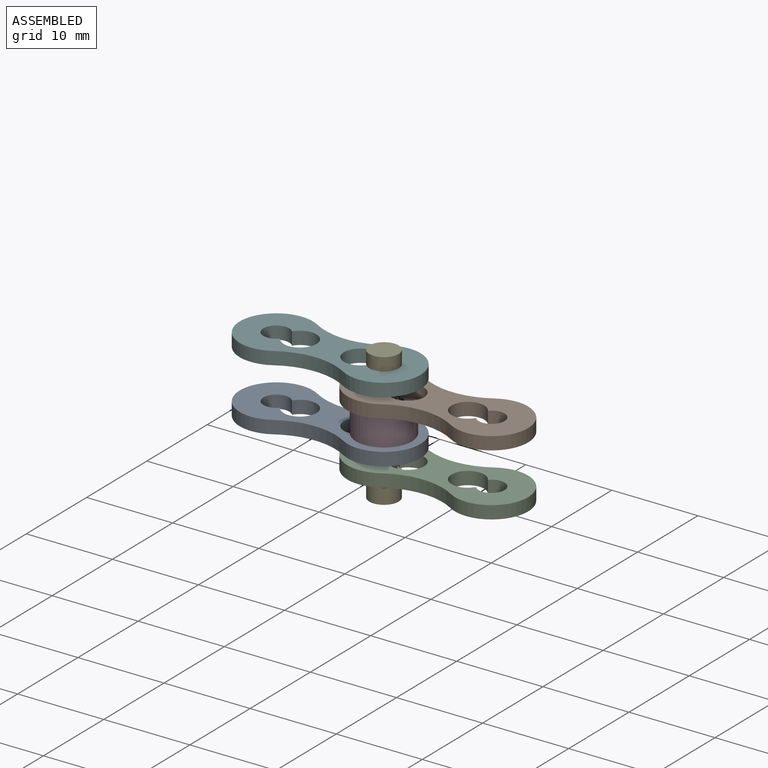
[diagram: assembled view]
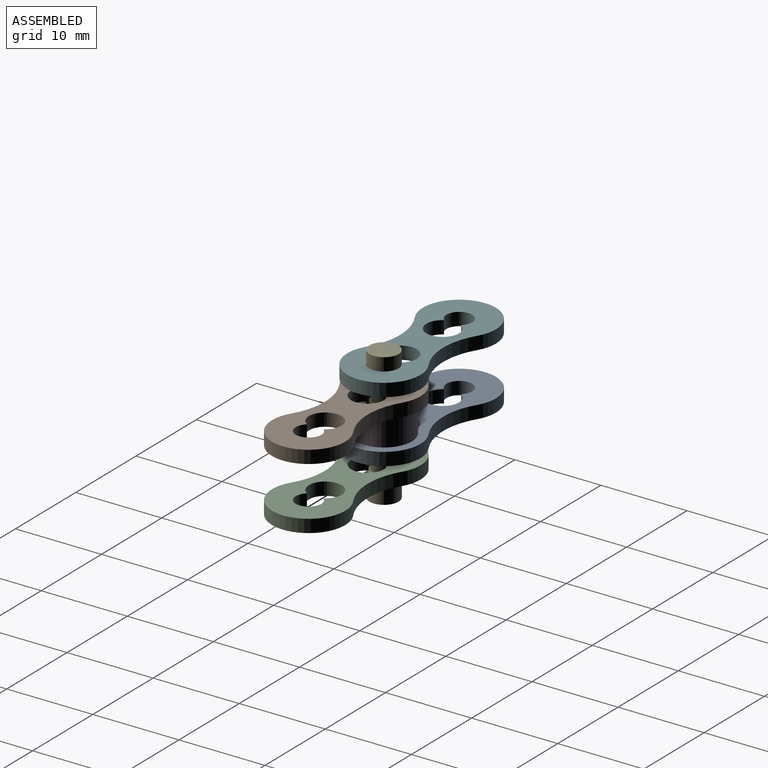
[diagram: assembled view, second angle]
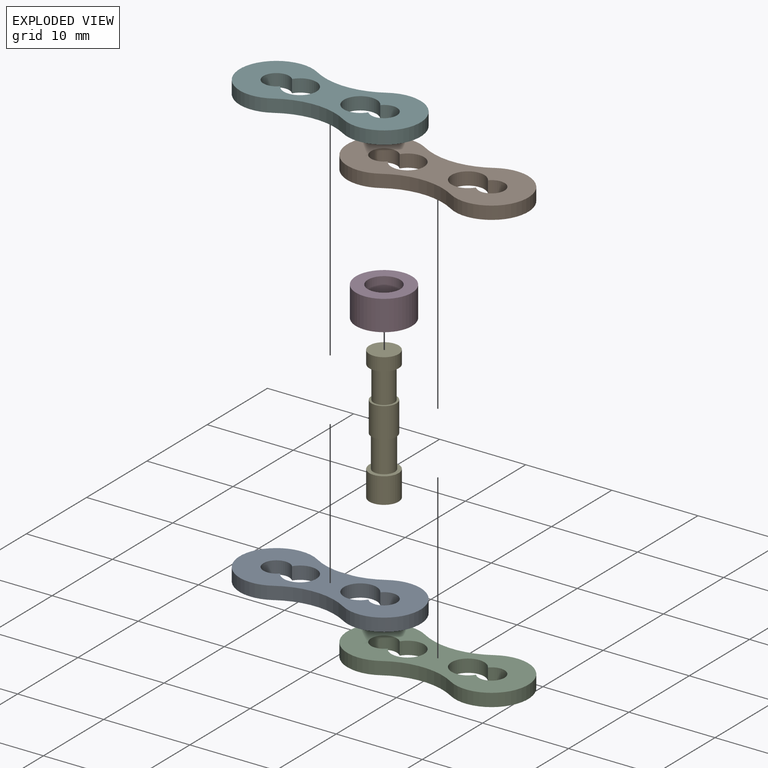
[diagram: exploded view]
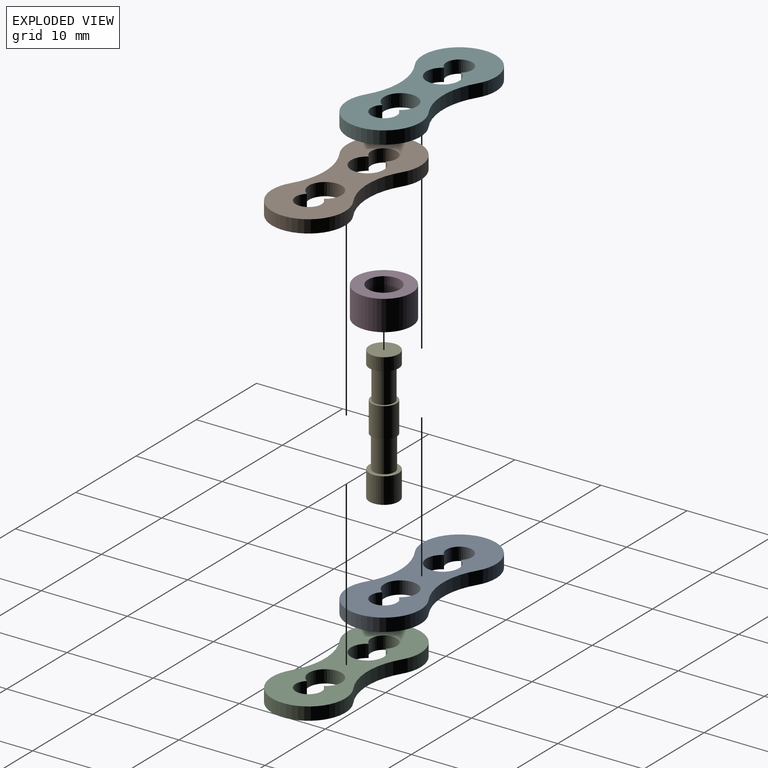
[diagram: exploded view, second angle]
ASSEMBLY  parts=6 mates=6
PART A: 10 faces, bbox 21x8.5x1.5 mm
  f0: cylinder r=1.9mm len=3.8mm, axis (0,0,-1), area 14.8mm2, adj f7,f8,f9
  f1: cylinder r=7.76mm len=8.08mm, axis (0,0,-1), area 12.7mm2, adj f2,f5,f8,f9
  f2: cylinder r=4.25mm len=8.5mm, axis (0,0,-1), area 27mm2, adj f1,f3,f8,f9
  f3: cylinder r=7.76mm len=8.08mm, axis (0,0,-1), area 12.7mm2, adj f2,f5,f8,f9
  f4: cylinder r=1.9mm len=3.8mm, axis (0,0,-1), area 14.8mm2, adj f6,f8,f9
  f5: cylinder r=4.25mm len=8.5mm, axis (0,0,-1), area 27mm2, adj f1,f3,f8,f9
  f6: cylinder r=1.5mm len=3mm, axis (0,0,-1), area 10.9mm2, adj f4,f8,f9
  f7: cylinder r=1.5mm len=3mm, axis (0,0,-1), area 10.9mm2, adj f0,f8,f9
  f8: plane 21x8.5mm, normal (0,0,1), area 103.7mm2, adj f0,f1,f2,f3,f4,f5,f6,f7
  f9: plane 21x8.5mm, normal (0,0,-1), area 103.7mm2, adj f0,f1,f2,f3,f4,f5,f6,f7
PART B: 10 faces, bbox 21x8.5x1.5 mm
  f0: cylinder r=1.9mm len=3.8mm, axis (0,0,-1), area 14.8mm2, adj f7,f8,f9
  f1: cylinder r=7.76mm len=8.08mm, axis (0,0,-1), area 12.7mm2, adj f2,f5,f8,f9
  f2: cylinder r=4.25mm len=8.5mm, axis (0,0,-1), area 27mm2, adj f1,f3,f8,f9
  f3: cylinder r=7.76mm len=8.08mm, axis (0,0,-1), area 12.7mm2, adj f2,f5,f8,f9
  f4: cylinder r=1.9mm len=3.8mm, axis (0,0,-1), area 14.8mm2, adj f6,f8,f9
  f5: cylinder r=4.25mm len=8.5mm, axis (0,0,-1), area 27mm2, adj f1,f3,f8,f9
  f6: cylinder r=1.5mm len=3mm, axis (0,0,-1), area 10.9mm2, adj f4,f8,f9
  f7: cylinder r=1.5mm len=3mm, axis (0,0,-1), area 10.9mm2, adj f0,f8,f9
  f8: plane 21x8.5mm, normal (0,0,1), area 103.7mm2, adj f0,f1,f2,f3,f4,f5,f6,f7
  f9: plane 21x8.5mm, normal (0,0,-1), area 103.7mm2, adj f0,f1,f2,f3,f4,f5,f6,f7
PART C: 10 faces, bbox 21x8.5x1.5 mm
  f0: cylinder r=1.9mm len=3.8mm, axis (0,0,-1), area 14.8mm2, adj f7,f8,f9
  f1: cylinder r=7.76mm len=8.08mm, axis (0,0,-1), area 12.7mm2, adj f2,f5,f8,f9
  f2: cylinder r=4.25mm len=8.5mm, axis (0,0,-1), area 27mm2, adj f1,f3,f8,f9
  f3: cylinder r=7.76mm len=8.08mm, axis (0,0,-1), area 12.7mm2, adj f2,f5,f8,f9
  f4: cylinder r=1.9mm len=3.8mm, axis (0,0,-1), area 14.8mm2, adj f6,f8,f9
  f5: cylinder r=4.25mm len=8.5mm, axis (0,0,-1), area 27mm2, adj f1,f3,f8,f9
  f6: cylinder r=1.5mm len=3mm, axis (0,0,-1), area 10.9mm2, adj f4,f8,f9
  f7: cylinder r=1.5mm len=3mm, axis (0,0,-1), area 10.9mm2, adj f0,f8,f9
  f8: plane 21x8.5mm, normal (0,0,1), area 103.7mm2, adj f0,f1,f2,f3,f4,f5,f6,f7
  f9: plane 21x8.5mm, normal (0,0,-1), area 103.7mm2, adj f0,f1,f2,f3,f4,f5,f6,f7
PART D: 4 faces, bbox 6.5x6.5x3.5 mm
  f0: cylinder r=1.88mm len=3.75mm, axis (0,0,-1), area 41.2mm2, adj f2,f3
  f1: cylinder r=3.25mm len=6.5mm, axis (0,0,-1), area 71.5mm2, adj f2,f3
  f2: plane 6.5x6.5mm, normal (0,0,1), area 22.1mm2, adj f0,f1
  f3: plane 6.5x6.5mm, normal (0,0,-1), area 22.1mm2, adj f0,f1
PART E: 11 faces, bbox 3.4x3.4x15.5 mm
  f0: plane 3.4x3.4mm, normal (0,0,1), area 4.2mm2, adj f1,f10
  f1: cylinder r=1.25mm len=3.75mm, axis (0,0,-1), area 29.5mm2, adj f0,f2
  f2: plane 2.9x2.9mm, normal (0,0,-1), area 1.7mm2, adj f1,f3
  f3: cylinder r=1.45mm len=3.5mm, axis (0,0,-1), area 31.9mm2, adj f2,f4
  f4: plane 2.9x2.9mm, normal (0,0,1), area 2.1mm2, adj f3,f5
  f5: cylinder r=1.2mm len=3.75mm, axis (0,0,-1), area 28.3mm2, adj f4,f6
  f6: plane 3.4x3.4mm, normal (0,0,-1), area 4.6mm2, adj f5,f7
  f7: cylinder r=1.7mm len=3.4mm, axis (0,0,-1), area 16mm2, adj f6,f8
  f8: plane 3.4x3.4mm, normal (0,0,1), area 9.1mm2, adj f7
  f9: plane 3.4x3.4mm, normal (0,0,-1), area 9.1mm2, adj f10
  f10: cylinder r=1.7mm len=3.4mm, axis (0,0,-1), area 32mm2, adj f0,f9
PART F: 10 faces, bbox 21x8.5x1.5 mm
  f0: cylinder r=1.9mm len=3.8mm, axis (0,0,-1), area 14.8mm2, adj f7,f8,f9
  f1: cylinder r=7.76mm len=8.08mm, axis (0,0,-1), area 12.7mm2, adj f2,f5,f8,f9
  f2: cylinder r=4.25mm len=8.5mm, axis (0,0,-1), area 27mm2, adj f1,f3,f8,f9
  f3: cylinder r=7.76mm len=8.08mm, axis (0,0,-1), area 12.7mm2, adj f2,f5,f8,f9
  f4: cylinder r=1.9mm len=3.8mm, axis (0,0,-1), area 14.8mm2, adj f6,f8,f9
  f5: cylinder r=4.25mm len=8.5mm, axis (0,0,-1), area 27mm2, adj f1,f3,f8,f9
  f6: cylinder r=1.5mm len=3mm, axis (0,0,-1), area 10.9mm2, adj f4,f8,f9
  f7: cylinder r=1.5mm len=3mm, axis (0,0,-1), area 10.9mm2, adj f0,f8,f9
  f8: plane 21x8.5mm, normal (0,0,1), area 103.7mm2, adj f0,f1,f2,f3,f4,f5,f6,f7
  f9: plane 21x8.5mm, normal (0,0,-1), area 103.7mm2, adj f0,f1,f2,f3,f4,f5,f6,f7
PLACE A t=(-8.09,-4.09,-7.03)mm
PLACE B t=(4.41,-24.09,-2.03)mm
PLACE C t=(4.41,5.91,-9.28)mm
PLACE D t=(4.41,5.91,-7.03)mm
PLACE E t=(4.41,5.91,-12.28)mm
PLACE F t=(-8.09,-14.09,0.22)mm
MATE revolute D.f0 <-> E.f1  axis (0,0,-1) through (4.41,5.91,-2.03)mm
MATE revolute F.f2 <-> E.f1  axis (0,0,1) through (4.41,5.91,1.72)mm
MATE revolute A.f2 <-> E.f1  axis (0,0,1) through (4.41,5.91,-5.53)mm
MATE revolute E.f1 <-> C.f5  axis (0,0,-1) through (4.41,5.91,-9.28)mm
MATE revolute B.f5 <-> D.f0  axis (0,0,-1) through (4.41,5.91,-2.03)mm
MATE revolute C.f5 <-> E.f1  axis (0,0,-1) through (4.41,5.91,-9.28)mm
